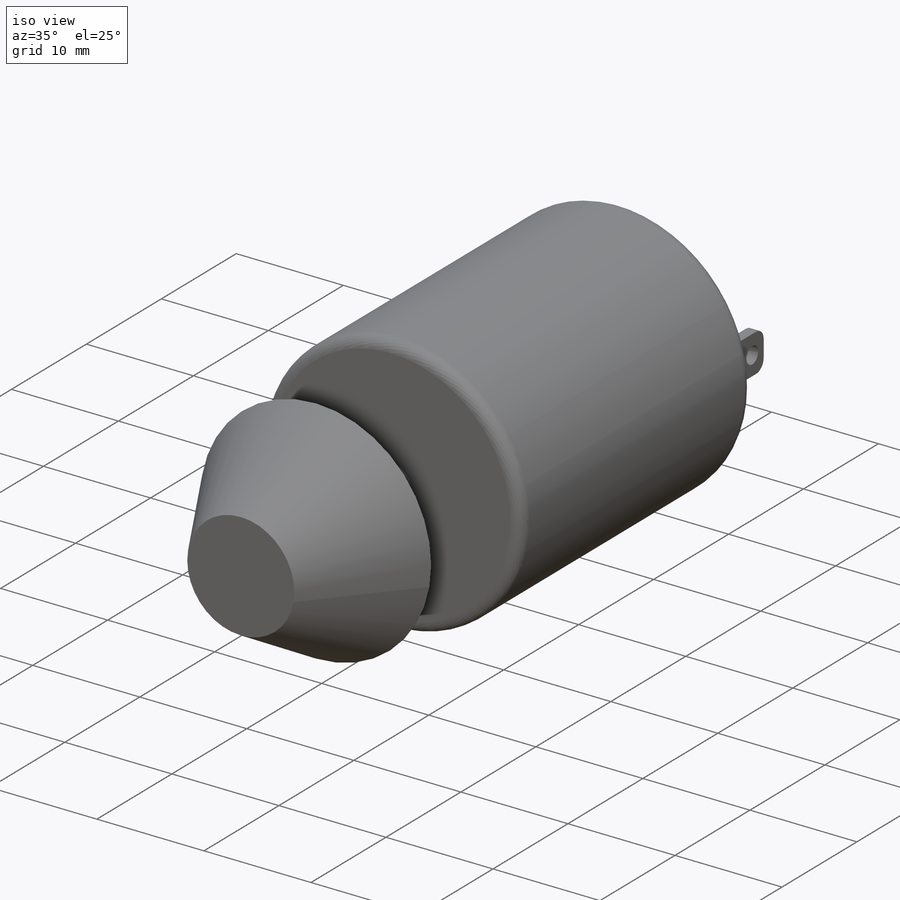
[diagram: iso view]
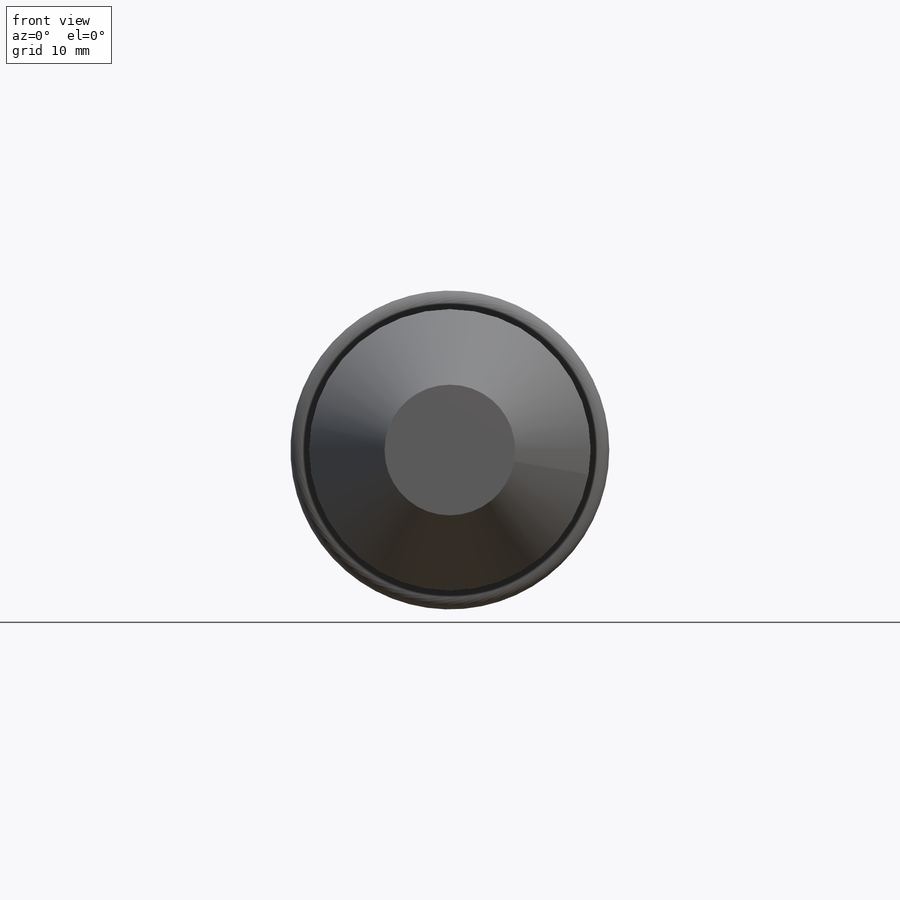
[diagram: front view]
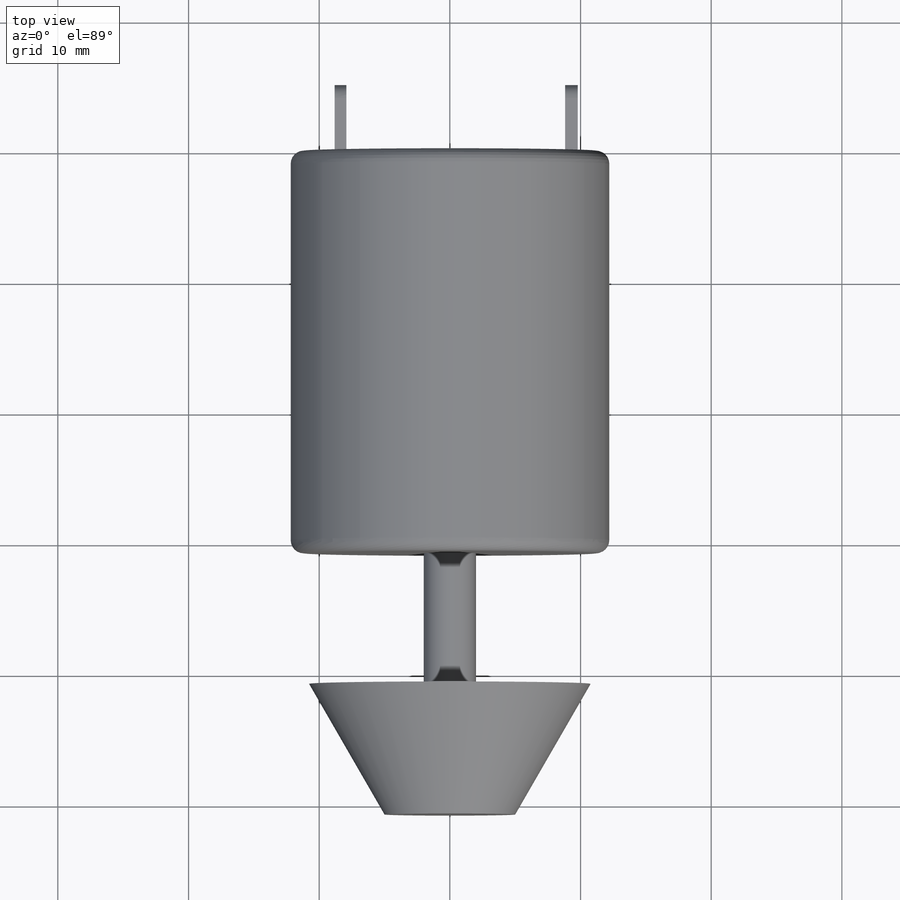
[diagram: top view]
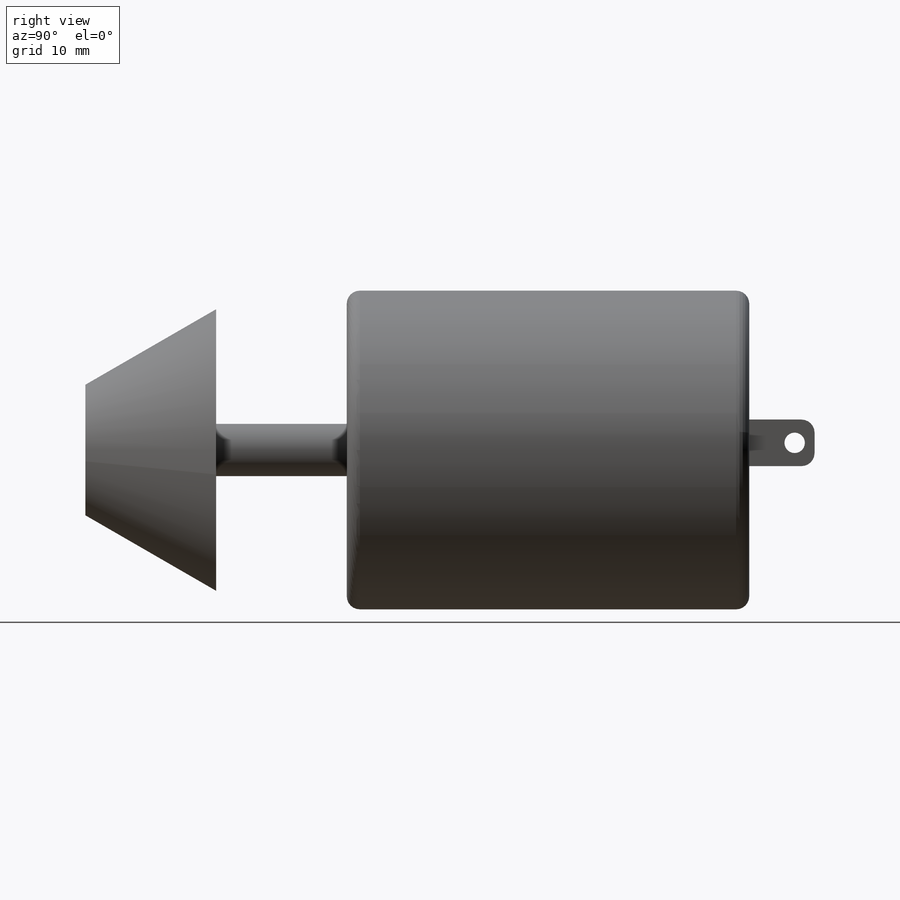
[diagram: right view]
SOLIDWORKS PART (.sldprt)
format: sldprt  version: not decoded by parser v0  size: 242,176 bytes
history: native  units: mm
features: sketch x5, extrude x4, plane x3, fillet x2, material x1, cut_extrude x1 (+9 scaffold rows collapsed)
feature tree (25):
  scaffold x9  (default folders/planes/origin — collapsed)
  material  "201.0-T43 Molde de fundição com isolamento (SS)"
  plane  "Plano frontal"
  plane  "Plano superior"
  plane  "Plano direito"
  sketch  "Esboço1"  dims[D1=24.4mm]
  extrude  "Ressalto-extrusão1"  Depth=30.8mm
  fillet  "Filete1"  Radius=1mm
  sketch  "Esboço2"  dims[D1=4.0mm]
  extrude  "Ressalto-extrusão2"  Depth=10mm
  sketch  "Esboço4"
  extrude  "Ressalto-extrusão3"  Depth=5mm
  fillet  "Filete2"  Radius=1mm
  sketch  "Esboço5"
  cut_extrude  "Corte-extrusão2"  [1 undecoded]
  sketch  "Esboço6"  dims[D1=10.0mm]
  extrude  "Ressalto-extrusão5"  Depth=10mm
decode coverage: 9 of 12 modeling features carry decoded parameters
note: 1 parameter value undecoded
note: suppression state not decoded; provenance and decode notes live in map.json
